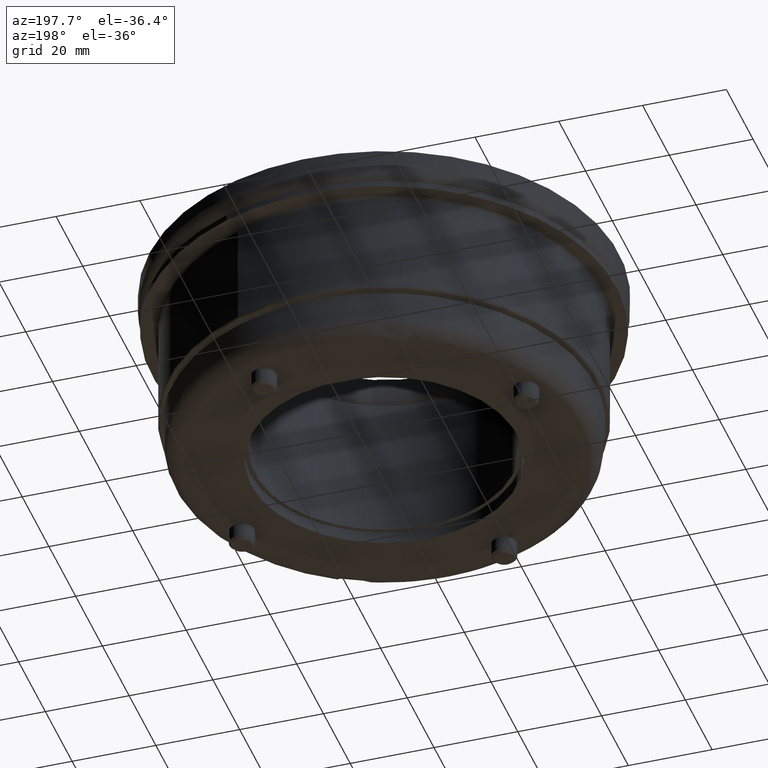
[diagram: clean part render]
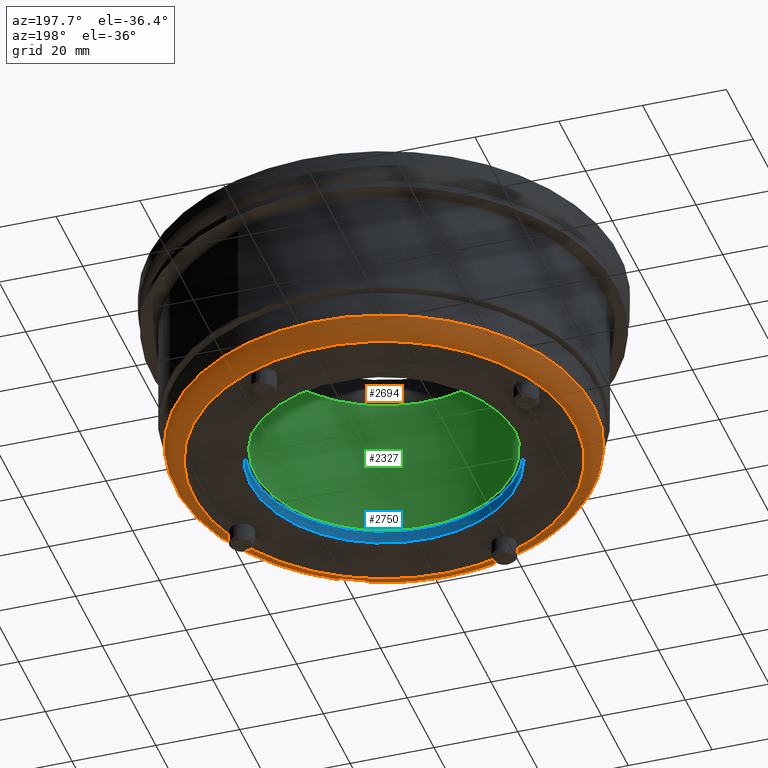
[diagram: same view with three faces highlighted in distinct colors, each labeled with its STEP entity id]
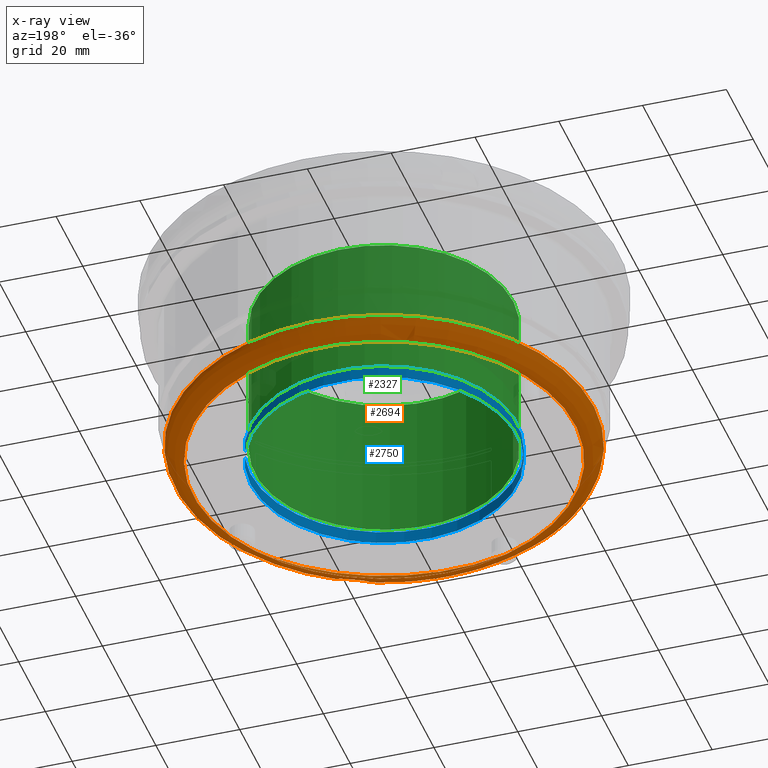
[diagram: x-ray of the same camera — body ghosted, the three highlighted faces saturated]
A machine part, auxiliary view with three faces highlighted in distinct colors.
The next image is the same camera in x-ray (body ghosted, the three faces saturated) — at least one of them is partly hidden behind the body in this view.
Their STEP definitions:

[orange] entity #2694 — the highlighted toroidal blend (fillet) surface has major radius 45.5243 mm and minor (blend) radius 4.5 mm.
#2667=CARTESIAN_POINT('',(-7.949999999999999,1.500000000000004,0.0));
#2668=DIRECTION('',(0.0,-1.0,0.0));
#2669=DIRECTION('',(0.0,0.0,-1.0));
#2670=AXIS2_PLACEMENT_3D('',#2667,#2668,#2669);
#2671=TOROIDAL_SURFACE('',#2670,45.524268188973878,4.5);
#2672=CARTESIAN_POINT('',(-57.957144330386726,1.107799157635542,0.0));
#2673=VERTEX_POINT('',#2672);
#2674=CARTESIAN_POINT('',(-7.949999999999999,1.107799157635542,6.124109E-015));
#2675=DIRECTION('',(0.0,-1.0,0.0));
#2676=DIRECTION('',(1.0,0.0,0.0));
#2677=AXIS2_PLACEMENT_3D('',#2674,#2675,#2676);
#2678=CIRCLE('',#2677,50.00714433038673);
#2679=EDGE_CURVE('',#2673,#2673,#2678,.T.);
#2680=ORIENTED_EDGE('',*,*,#2679,.T.);
#2681=EDGE_LOOP('',(#2680));
#2682=FACE_OUTER_BOUND('',#2681,.T.);
#2683=CARTESIAN_POINT('',(-53.47426818897388,-3.0,1.115023E-014));
#2684=VERTEX_POINT('',#2683);
#2685=CARTESIAN_POINT('',(-7.949999999999999,-3.0,0.0));
#2686=DIRECTION('',(0.0,1.0,0.0));
#2687=DIRECTION('',(1.0,0.0,0.0));
#2688=AXIS2_PLACEMENT_3D('',#2685,#2686,#2687);
#2689=CIRCLE('',#2688,45.524268188973878);
#2690=EDGE_CURVE('',#2684,#2684,#2689,.T.);
#2691=ORIENTED_EDGE('',*,*,#2690,.T.);
#2692=EDGE_LOOP('',(#2691));
#2693=FACE_BOUND('',#2692,.T.);
#2694=ADVANCED_FACE('',(#2682,#2693),#2671,.T.);

[blue] entity #2750 — the highlighted cylindrical surface (bore or boss wall) has radius 31.8 mm, axis along (-0, -0, -1).
#2655=CARTESIAN_POINT('',(-39.75,0.0,0.0));
#2656=VERTEX_POINT('',#2655);
#2657=CARTESIAN_POINT('',(-7.949999999999999,0.0,0.0));
#2658=DIRECTION('',(0.0,-1.0,0.0));
#2659=DIRECTION('',(-1.0,0.0,0.0));
#2660=AXIS2_PLACEMENT_3D('',#2657,#2658,#2659);
#2661=CIRCLE('',#2660,31.800000000000001);
#2662=EDGE_CURVE('',#2656,#2656,#2661,.T.);
#2727=CARTESIAN_POINT('',(-39.75,-2.999999999999999,0.0));
#2728=VERTEX_POINT('',#2727);
#2729=CARTESIAN_POINT('',(-7.949999999999999,-2.999999999999999,0.0));
#2730=DIRECTION('',(0.0,-1.0,0.0));
#2731=DIRECTION('',(-1.0,0.0,0.0));
#2732=AXIS2_PLACEMENT_3D('',#2729,#2730,#2731);
#2733=CIRCLE('',#2732,31.800000000000001);
#2734=EDGE_CURVE('',#2728,#2728,#2733,.T.);
#2739=CARTESIAN_POINT('',(-7.949999999999999,-1.5,0.0));
#2740=DIRECTION('',(0.0,-1.0,0.0));
#2741=DIRECTION('',(-1.0,0.0,0.0));
#2742=AXIS2_PLACEMENT_3D('',#2739,#2740,#2741);
#2743=CYLINDRICAL_SURFACE('',#2742,31.800000000000001);
#2744=ORIENTED_EDGE('',*,*,#2662,.F.);
#2745=EDGE_LOOP('',(#2744));
#2746=FACE_OUTER_BOUND('',#2745,.T.);
#2747=ORIENTED_EDGE('',*,*,#2734,.T.);
#2748=EDGE_LOOP('',(#2747));
#2749=FACE_BOUND('',#2748,.T.);
#2750=ADVANCED_FACE('',(#2746,#2749),#2743,.F.);

[green] entity #2327 — the highlighted cylindrical surface (bore or boss wall) has radius 30.8 mm, axis along (-0, -0, 1).
#1733=CARTESIAN_POINT('',(30.800000000000001,4.327024E-015,0.0));
#1734=VERTEX_POINT('',#1733);
#1735=CARTESIAN_POINT('',(-5.551115E-016,5.551115E-016,0.0));
#1736=DIRECTION('',(0.0,0.0,1.0));
#1737=DIRECTION('',(-1.0,0.0,0.0));
#1738=AXIS2_PLACEMENT_3D('',#1735,#1736,#1737);
#1739=CIRCLE('',#1738,30.800000000000001);
#1740=EDGE_CURVE('',#1734,#1734,#1739,.T.);
#2308=CARTESIAN_POINT('',(-5.551115E-016,5.551115E-016,0.0));
#2309=DIRECTION('',(0.0,0.0,1.0));
#2310=DIRECTION('',(-1.0,0.0,0.0));
#2311=AXIS2_PLACEMENT_3D('',#2308,#2309,#2310);
#2312=CYLINDRICAL_SURFACE('',#2311,30.800000000000001);
#2313=CARTESIAN_POINT('',(30.800000000000001,4.327024E-015,35.0));
#2314=VERTEX_POINT('',#2313);
#2315=CARTESIAN_POINT('',(-5.551115E-016,5.551115E-016,35.0));
#2316=DIRECTION('',(0.0,0.0,-1.0));
#2317=DIRECTION('',(-1.0,0.0,0.0));
#2318=AXIS2_PLACEMENT_3D('',#2315,#2316,#2317);
#2319=CIRCLE('',#2318,30.800000000000001);
#2320=EDGE_CURVE('',#2314,#2314,#2319,.T.);
#2321=ORIENTED_EDGE('',*,*,#2320,.F.);
#2322=EDGE_LOOP('',(#2321));
#2323=FACE_OUTER_BOUND('',#2322,.T.);
#2324=ORIENTED_EDGE('',*,*,#1740,.F.);
#2325=EDGE_LOOP('',(#2324));
#2326=FACE_BOUND('',#2325,.T.);
#2327=ADVANCED_FACE('',(#2323,#2326),#2312,.F.);